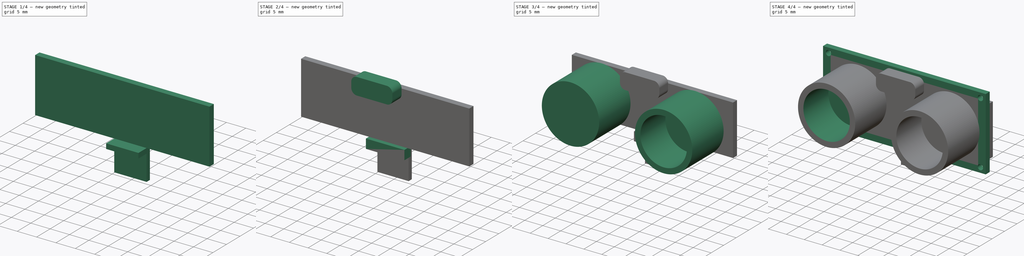
[diagram: build sequence overview — one tinted view per stage of 4, left to right]
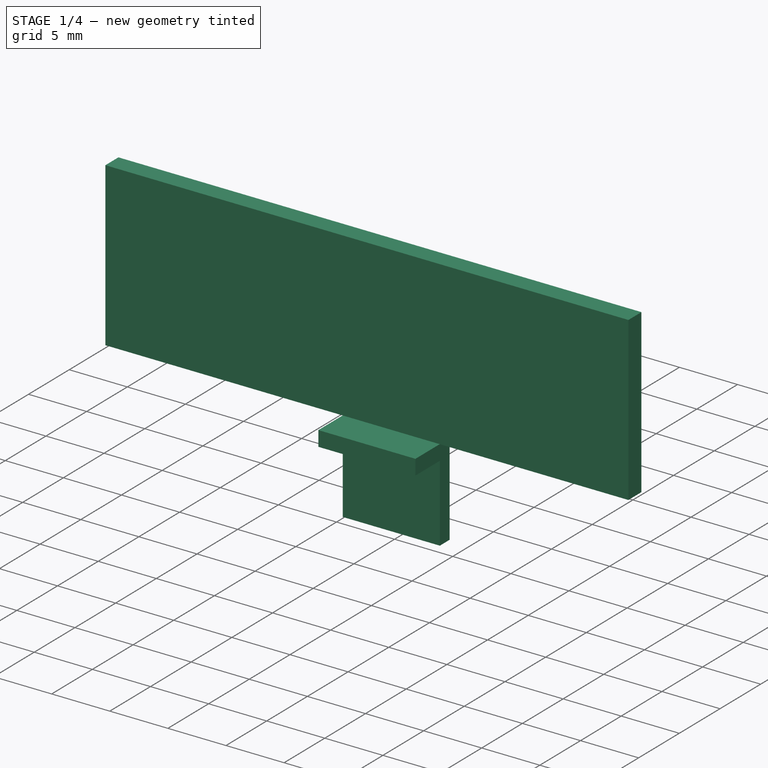
[diagram: stage 1 of 4 — iso view after this stage's code; geometry added in this stage tinted green]
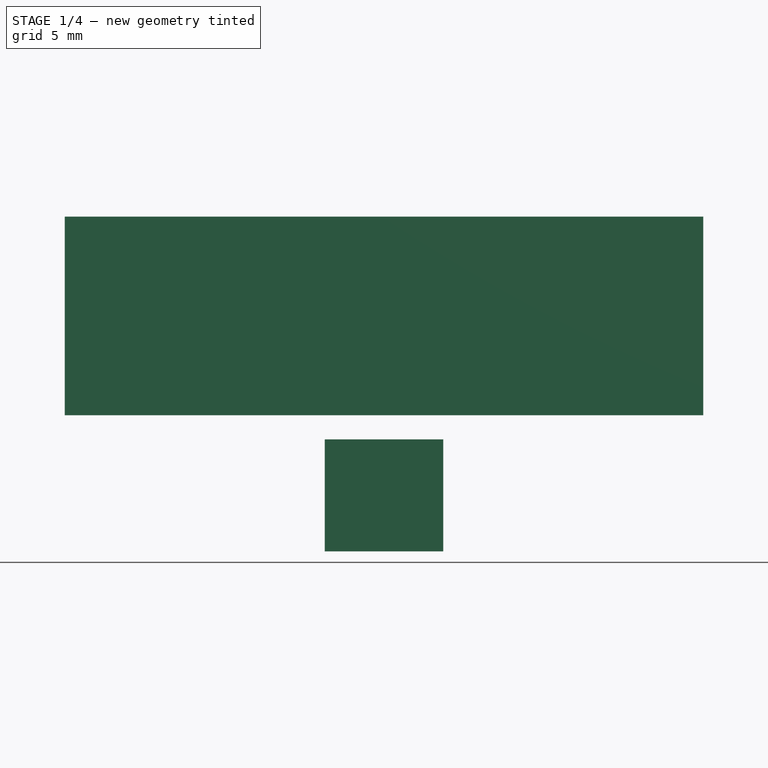
[diagram: stage 1 of 4 — front view after this stage's code; geometry added in this stage tinted green]
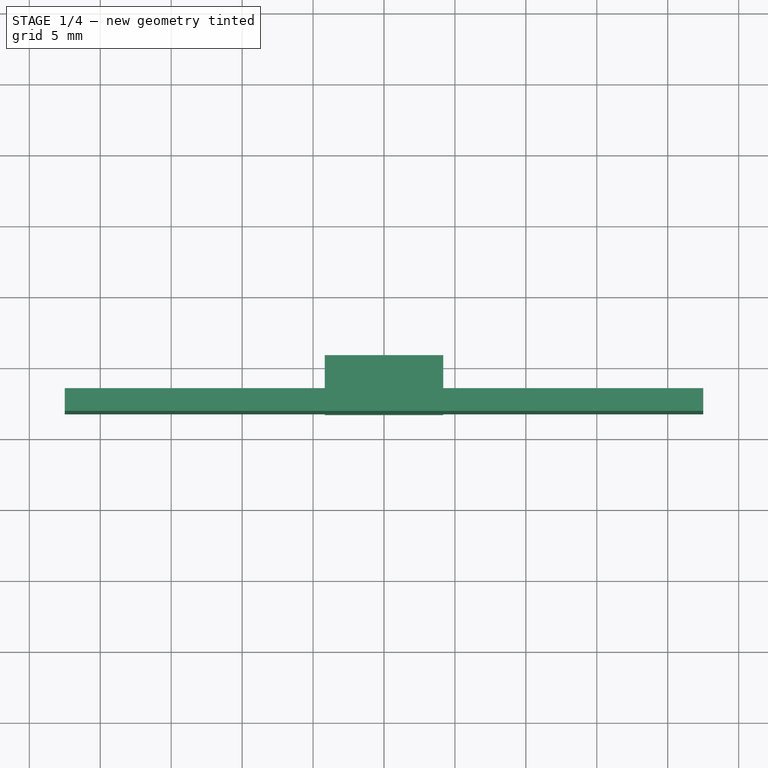
[diagram: stage 1 of 4 — top view after this stage's code; geometry added in this stage tinted green]
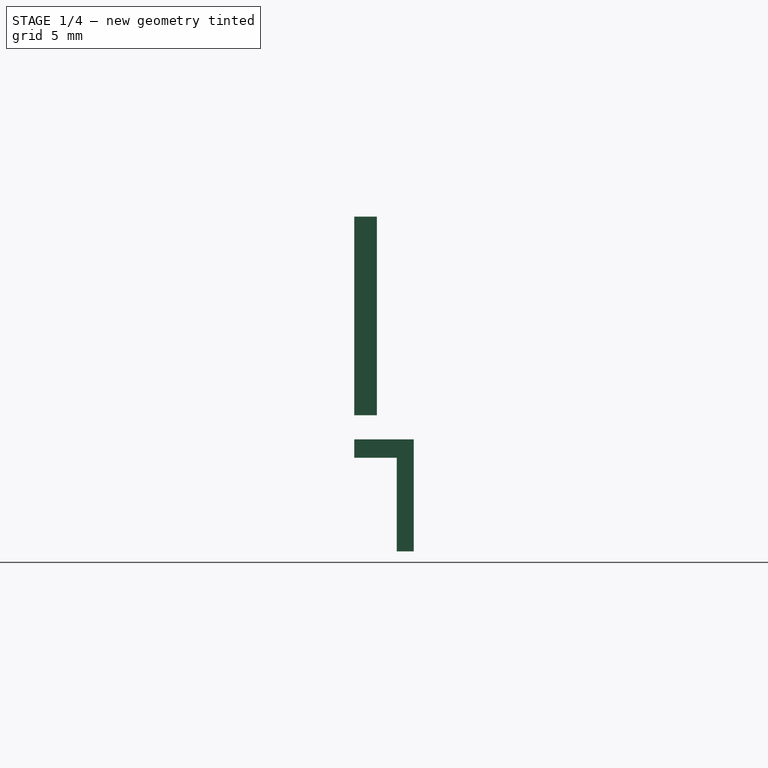
[diagram: stage 1 of 4 — right view after this stage's code; geometry added in this stage tinted green]
FCSTD DOCUMENT  (FreeCAD 0.19R24276 (Git))
Label: Std_USDistSensor
License: All rights reserved
LicenseURL: http://en.wikipedia.org/wiki/All_rights_reserved
objects: Sketcher::SketchObject×11, PartDesign::Pad×7, PartDesign::Body×7, PartDesign::Pocket×4, PartDesign::Plane×2, PartDesign::Fillet×1, PartDesign::ShapeBinder×1, App::Part×1
note: 45 computed .brp shape members not serialized (recipe doc carries the construction recipe); baked Part::Feature solids carry a one-line shape summary decoded from their .brp

FEATURE [PartDesign::Body] Body004  label="PinBlock"
  Group = -> [DatumPlane,Sketch007,Pad004]
  Origin = -> Origin005
  Tip = -> Pad004
FEATURE [PartDesign::Plane] DatumPlane001
  AttachmentOffset = pos=(0,0,-1.6) rot=(0,0,1;0rad)
  Length = 60
  MapMode = 5
  Placement = pos=(0,1.6,4e-16) rot=(1,0,0;1.5708rad)
  ResizeMode = 0
  Support = -> [XZ_Plane006]
  Width = 60
FEATURE [Sketcher::SketchObject] Sketch008
  FullyConstrained = true
  MapMode = 5
  Placement = pos=(0,1.6,4e-16) rot=(1,0,0;1.5708rad)
  Support = -> [DatumPlane001]
  sketch-geometry (5):
    g0: LineSegment StartX=-4.175 StartY=-8.7 StartZ=0 EndX=4.175 EndY=-8.7 EndZ=0
    g1: LineSegment StartX=4.175 StartY=-8.7 StartZ=0 EndX=4.175 EndY=-16.6 EndZ=0
    g2: LineSegment StartX=4.175 StartY=-16.6 StartZ=0 EndX=-4.175 EndY=-16.6 EndZ=0
    g3: LineSegment StartX=-4.175 StartY=-16.6 StartZ=0 EndX=-4.175 EndY=-8.7 EndZ=0
    g4: LineSegment StartX=0 StartY=0 StartZ=0 EndX=0 EndY=-8.7 EndZ=0
  constraints (14):
    c: Coincident(g0,g1)
    c: Coincident(g1,g2)
    c: Coincident(g2,g3)
    c: Coincident(g3,g0)
    c: Horizontal(g0)
    c: Horizontal(g2)
    c: Vertical(g1)
    c: Vertical(g3)
    c: Coincident(g4,g-1)
    c: PointOnObject(g4,g-2)
    c: Symmetric(g0,g0,g4)
    c: Distance(g1) = 7.9
    c: Distance(g2) = 8.35
    c: Distance(g4) = 8.7
FEATURE [PartDesign::Pad] Pad005
  Direction = (1,1,1)
  Length = 4.2
  Length2 = 100
  Placement = pos=(0,1.6,0) rot=(1,0,0;1.5708rad)
  Profile = -> Sketch008
  Reversed = true
  Type = 0
FEATURE [Sketcher::SketchObject] Sketch009
  FullyConstrained = true
  MapMode = 5
  Placement = pos=(-4.175,1.6,0) rot=(0.707107,0,-0.707107;3.14159rad)
  Support = -> [Pad005]
  sketch-geometry (4):
    g0: LineSegment StartX=10 StartY=-3 StartZ=0 EndX=30 EndY=-3 EndZ=0
    g1: LineSegment StartX=30 StartY=-3 StartZ=0 EndX=30 EndY=0 EndZ=0
    g2: LineSegment StartX=30 StartY=0 StartZ=0 EndX=10 EndY=0 EndZ=0
    g3: LineSegment StartX=10 StartY=0 StartZ=0 EndX=10 EndY=-3 EndZ=0
  constraints (12):
    c: Coincident(g0,g1)
    c: Coincident(g1,g2)
    c: Coincident(g2,g3)
    c: Coincident(g3,g0)
    c: Horizontal(g0)
    c: Horizontal(g2)
    c: Vertical(g1)
    c: Vertical(g3)
    c: DistanceX(g-1,g2) = 10
    c: PointOnObject(g1,g-1)
    c: Distance(g2) = 20
    c: Distance(g1) = 3
FEATURE [PartDesign::Pocket] Pocket003
  BaseFeature = -> Pad005
  Length = 5
  Length2 = 100
  Placement = pos=(0,1.6,0) rot=(1,0,0;1.5708rad)
  Profile = -> Sketch009
  Type = 1
FEATURE [PartDesign::Body] Body005  label="Pins"
  Group = -> [DatumPlane001,Sketch008,Pad005,Sketch009,Pocket003]
  Origin = -> Origin006
  Tip = -> Pocket003
FEATURE [PartDesign::ShapeBinder] CopyPocket
  Placement = pos=(0,0,0) rot=(1,0,0;1.5708rad)
  TraceSupport = false
FEATURE [Sketcher::SketchObject] Sketch010
  FullyConstrained = true
  MapMode = 5
  Placement = pos=(0,1.6,-7e-16) rot=(-1,0,0;1.5708rad)
  Support = -> [CopyPocket]
  sketch-geometry (6):
    g0: LineSegment StartX=-22.5 StartY=7 StartZ=0 EndX=22.5 EndY=7 EndZ=0
    g1: LineSegment StartX=22.5 StartY=7 StartZ=0 EndX=22.5 EndY=-7 EndZ=0
    g2: LineSegment StartX=22.5 StartY=-7 StartZ=0 EndX=-22.5 EndY=-7 EndZ=0
    g3: LineSegment StartX=-22.5 StartY=-7 StartZ=0 EndX=-22.5 EndY=7 EndZ=0
    g4: LineSegment StartX=0 StartY=0 StartZ=0 EndX=0 EndY=7 EndZ=0
    g5: LineSegment StartX=0 StartY=-1e-16 StartZ=0 EndX=22.5 EndY=-1e-16 EndZ=0
  constraints (16):
    c: Coincident(g0,g1)
    c: Coincident(g1,g2)
    c: Coincident(g2,g3)
    c: Coincident(g3,g0)
    c: Horizontal(g0)
    c: Horizontal(g2)
    c: Vertical(g1)
    c: Vertical(g3)
    c: Coincident(g4,g-1)
    c: Vertical(g4)
    c: Coincident(g5,g-1)
    c: Horizontal(g5)
    c: Symmetric(g0,g0,g4)
    c: Symmetric(g0,g1,g5)
    c: Distance(g0) = 45
    c: Distance(g1) = 14
FEATURE [PartDesign::Pad] Pad006
  Direction = (1,1,1)
  Length = 1.6
  Length2 = 100
  Placement = pos=(0,0,0) rot=(1,0,0;1.5708rad)
  Profile = -> Sketch010
  Type = 0
FEATURE [PartDesign::Body] Body006  label="BackSolderChips"
  Group = -> [CopyPocket,Sketch010,Pad006]
  Origin = -> Origin007
  Tip = -> Pad006
FEATURE [App::Part] Part  label="UltrasonicSensor"
  Group = -> [Body,Body001,Body002,Body003,Body004,Body005,Body006]
  Origin = -> Origin
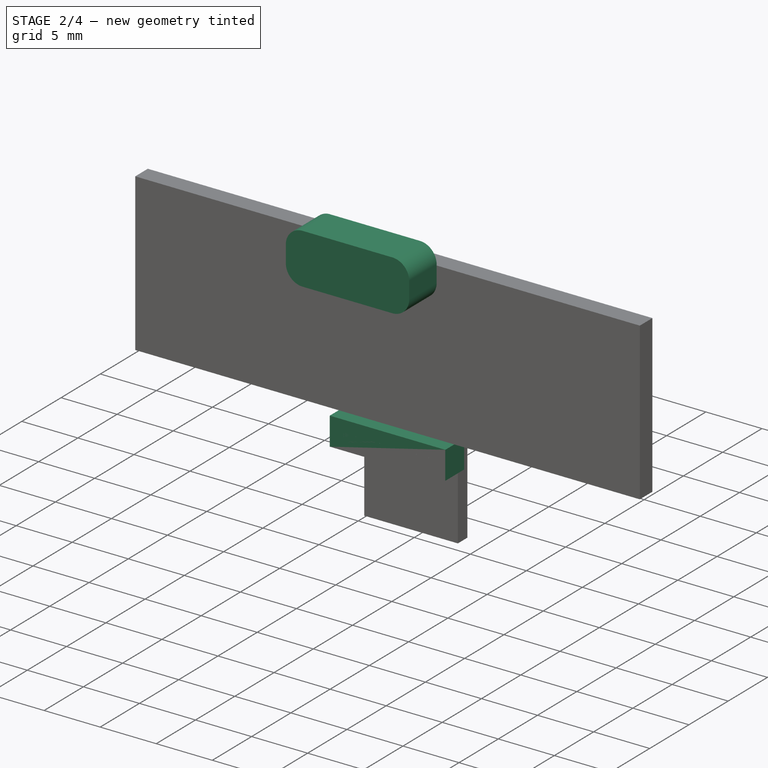
[diagram: stage 2 of 4 — iso view after this stage's code; geometry added in this stage tinted green]
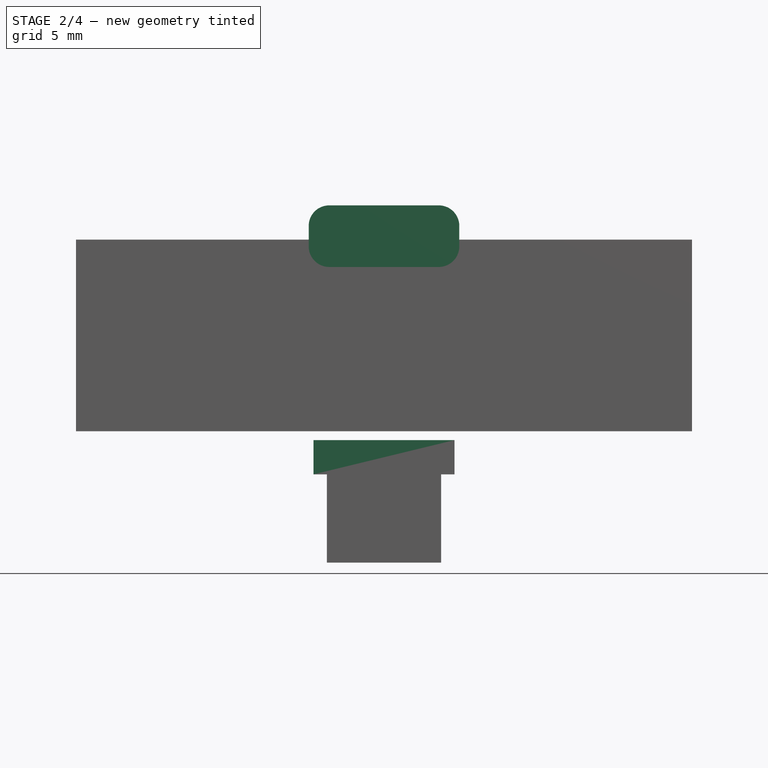
[diagram: stage 2 of 4 — front view after this stage's code; geometry added in this stage tinted green]
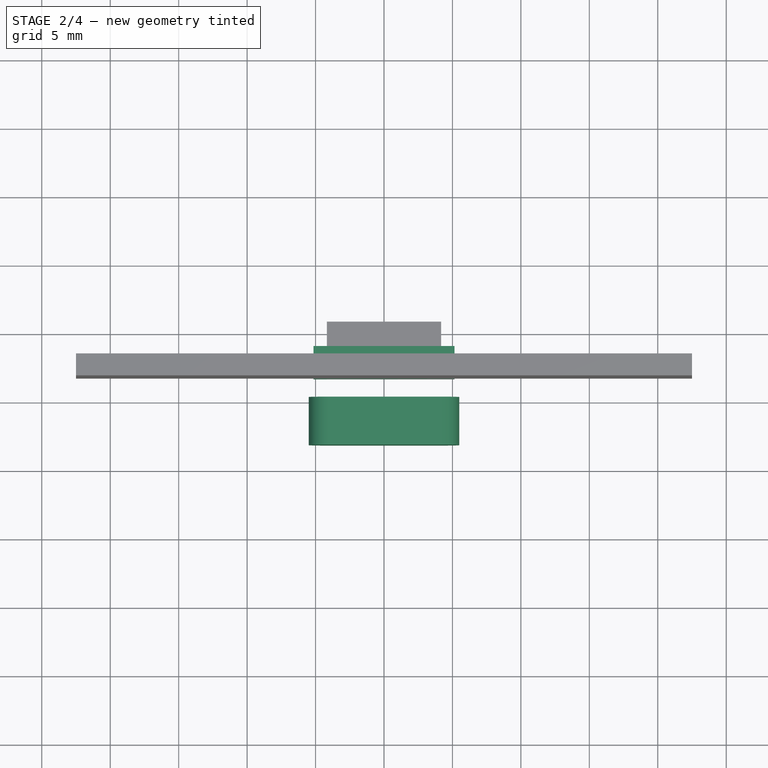
[diagram: stage 2 of 4 — top view after this stage's code; geometry added in this stage tinted green]
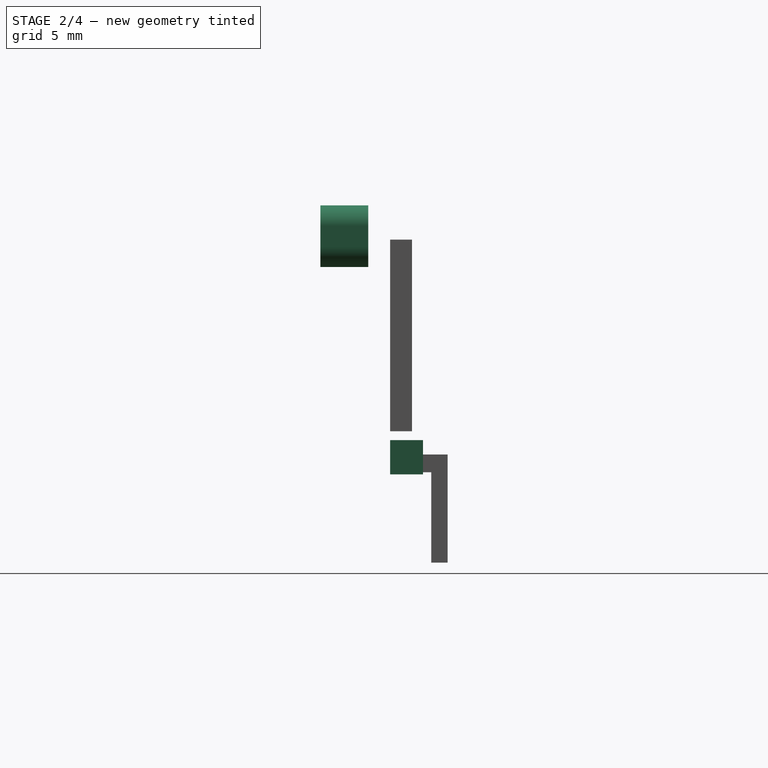
[diagram: stage 2 of 4 — right view after this stage's code; geometry added in this stage tinted green]
FEATURE [PartDesign::Body] Body002  label="USSens2"
  Group = -> [Sketch004,Pad002,Sketch005,Pocket002]
  Origin = -> Origin003
  Tip = -> Pocket002
FEATURE [Sketcher::SketchObject] Sketch006
  FullyConstrained = true
  MapMode = 5
  Placement = pos=(0,0,0) rot=(1,0,0;1.5708rad)
  Support = -> [XZ_Plane004]
  sketch-geometry (5):
    g0: LineSegment StartX=-5.5 StartY=9.5 StartZ=0 EndX=5.5 EndY=9.5 EndZ=0
    g1: LineSegment StartX=5.5 StartY=9.5 StartZ=0 EndX=5.5 EndY=5 EndZ=0
    g2: LineSegment StartX=5.5 StartY=5 StartZ=0 EndX=-5.5 EndY=5 EndZ=0
    g3: LineSegment StartX=-5.5 StartY=5 StartZ=0 EndX=-5.5 EndY=9.5 EndZ=0
    g4: LineSegment StartX=0 StartY=0 StartZ=0 EndX=0 EndY=5 EndZ=0
  constraints (14):
    c: Coincident(g0,g1)
    c: Coincident(g1,g2)
    c: Coincident(g2,g3)
    c: Coincident(g3,g0)
    c: Horizontal(g0)
    c: Horizontal(g2)
    c: Vertical(g1)
    c: Vertical(g3)
    c: Coincident(g4,g-1)
    c: Vertical(g4)
    c: Symmetric(g2,g1,g4)
    c: Distance(g4) = 5
    c: Distance(g0) = 11
    c: Distance(g1) = 4.5
FEATURE [PartDesign::Pad] Pad003
  Direction = (1,1,1)
  Length = 3.5
  Length2 = 100
  Placement = pos=(0,0,0) rot=(1,0,0;1.5708rad)
  Profile = -> Sketch006
  Type = 0
FEATURE [PartDesign::Fillet] Fillet
  Base = -> Pad003 [Edge1,Edge2,Edge5,Edge8]
  BaseFeature = -> Pad003
  Placement = pos=(0,0,0) rot=(1,0,0;1.5708rad)
  Radius = 1.5
  SupportTransform = false
FEATURE [PartDesign::Body] Body003  label="SBlock"
  Group = -> [Sketch006,Pad003,Fillet]
  Origin = -> Origin004
  Tip = -> Fillet
FEATURE [PartDesign::Plane] DatumPlane
  AttachmentOffset = pos=(0,0,-1.6) rot=(0,0,1;0rad)
  Length = 60
  MapMode = 5
  Placement = pos=(0,1.6,4e-16) rot=(1,0,0;1.5708rad)
  ResizeMode = 0
  Support = -> [XZ_Plane005]
  Width = 60
FEATURE [Sketcher::SketchObject] Sketch007
  FullyConstrained = true
  MapMode = 5
  Placement = pos=(0,1.6,4e-16) rot=(1,0,0;1.5708rad)
  Support = -> [DatumPlane]
  sketch-geometry (5):
    g0: LineSegment StartX=0 StartY=0 StartZ=0 EndX=0 EndY=-7.65 EndZ=0
    g1: LineSegment StartX=-5.15 StartY=-7.65 StartZ=0 EndX=5.15 EndY=-7.65 EndZ=0
    g2: LineSegment StartX=5.15 StartY=-7.65 StartZ=0 EndX=5.15 EndY=-10.15 EndZ=0
    g3: LineSegment StartX=5.15 StartY=-10.15 StartZ=0 EndX=-5.15 EndY=-10.15 EndZ=0
    g4: LineSegment StartX=-5.15 StartY=-10.15 StartZ=0 EndX=-5.15 EndY=-7.65 EndZ=0
  constraints (14):
    c: Coincident(g0,g-1)
    c: Vertical(g0)
    c: Coincident(g1,g2)
    c: Coincident(g2,g3)
    c: Coincident(g3,g4)
    c: Coincident(g4,g1)
    c: Horizontal(g1)
    c: Horizontal(g3)
    c: Vertical(g2)
    c: Vertical(g4)
    c: Symmetric(g1,g1,g0)
    c: Distance(g3) = 10.3
    c: Distance(g2) = 2.5
    c: DistanceY(g2,g-1) = 10.15
FEATURE [PartDesign::Pad] Pad004
  Direction = (1,1,1)
  Length = 2.4
  Length2 = 100
  Placement = pos=(0,1.6,0) rot=(1,0,0;1.5708rad)
  Profile = -> Sketch007
  Reversed = true
  Type = 0
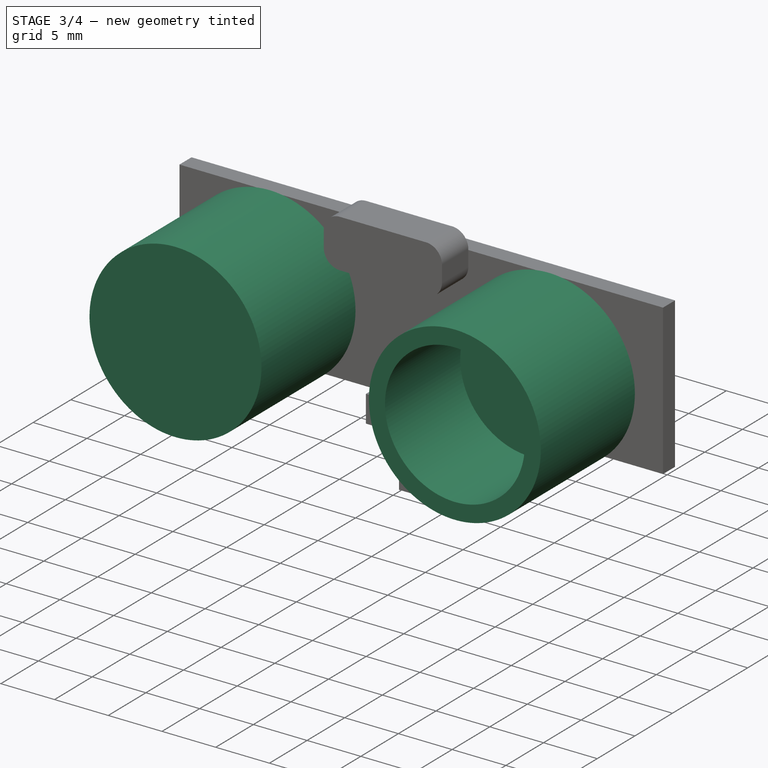
[diagram: stage 3 of 4 — iso view after this stage's code; geometry added in this stage tinted green]
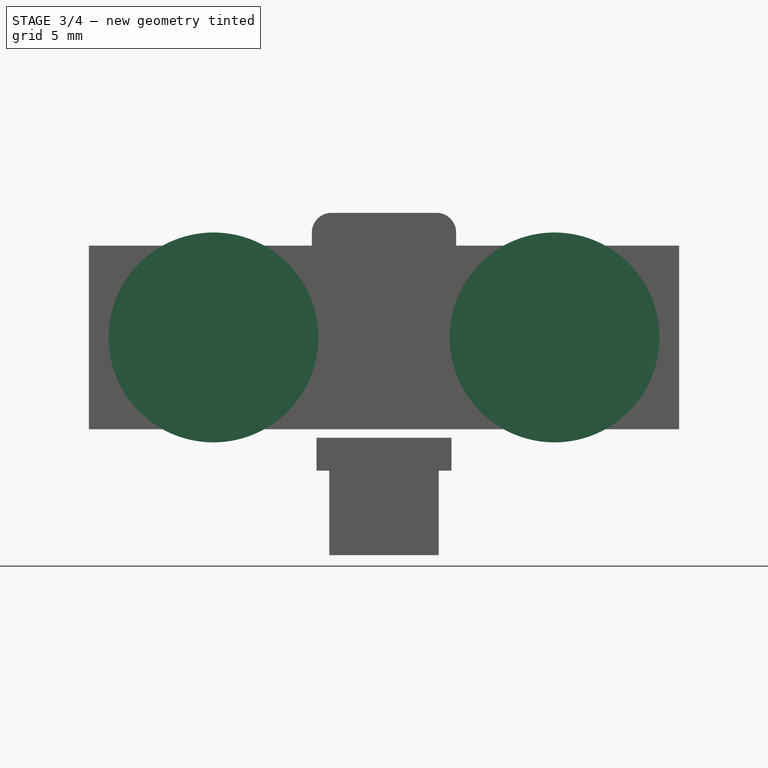
[diagram: stage 3 of 4 — front view after this stage's code; geometry added in this stage tinted green]
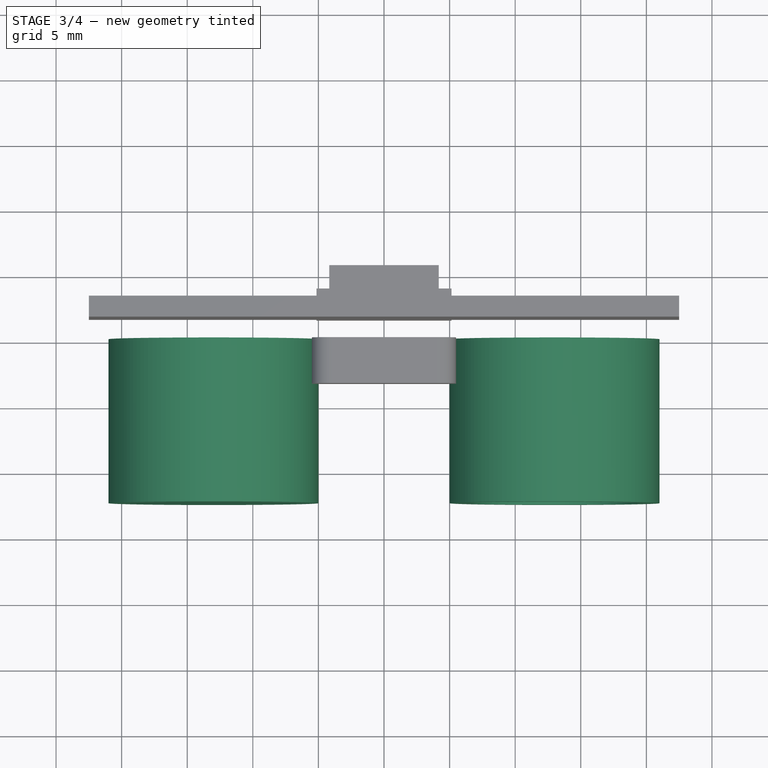
[diagram: stage 3 of 4 — top view after this stage's code; geometry added in this stage tinted green]
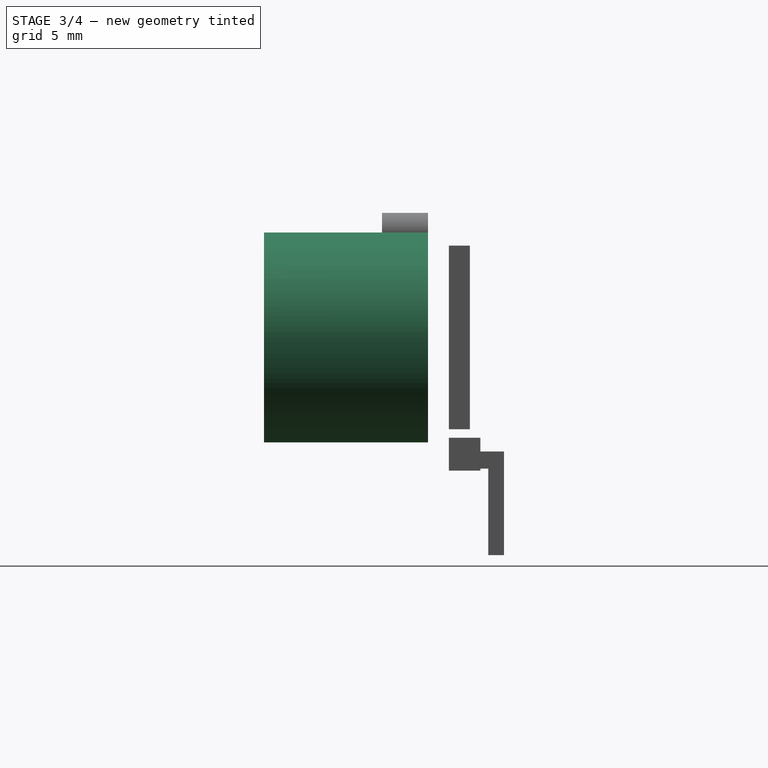
[diagram: stage 3 of 4 — right view after this stage's code; geometry added in this stage tinted green]
FEATURE [PartDesign::Body] Body  label="MainBoard"
  Group = -> [Sketch,Pad,Sketch001,Pocket]
  Origin = -> Origin001
  Tip = -> Pocket
FEATURE [Sketcher::SketchObject] Sketch002
  FullyConstrained = true
  MapMode = 5
  Placement = pos=(0,0,0) rot=(1,0,0;1.5708rad)
  Support = -> [XZ_Plane]
  sketch-geometry (1):
    g0: Circle CenterX=-13 CenterY=0 CenterZ=0 NormalX=0 NormalY=0 NormalZ=1 AngleXU=0 Radius=8
  constraints (3):
    c: PointOnObject(g0,g-1)
    c: Diameter(g0) = 16
    c: DistanceX(g0,g-1) = 13
FEATURE [PartDesign::Pad] Pad001
  Direction = (1,1,1)
  Length = 12.5
  Length2 = 100
  Placement = pos=(0,0,0) rot=(1,0,0;1.5708rad)
  Profile = -> Sketch002
  Type = 0
FEATURE [PartDesign::Body] Body001  label="USSens1"
  Group = -> [Sketch002,Pad001,Sketch003,Pocket001]
  Origin = -> Origin002
  Tip = -> Pocket001
FEATURE [Sketcher::SketchObject] Sketch004
  FullyConstrained = true
  MapMode = 5
  Placement = pos=(0,0,0) rot=(1,0,0;1.5708rad)
  Support = -> [XZ_Plane003]
  sketch-geometry (1):
    g0: Circle CenterX=13 CenterY=0 CenterZ=0 NormalX=0 NormalY=0 NormalZ=1 AngleXU=0 Radius=8
  constraints (3):
    c: PointOnObject(g0,g-1)
    c: Diameter(g0) = 16
    c: DistanceX(g-1,g0) = 13
FEATURE [PartDesign::Pad] Pad002
  Direction = (1,1,1)
  Length = 12.5
  Length2 = 100
  Placement = pos=(0,0,0) rot=(1,0,0;1.5708rad)
  Profile = -> Sketch004
  Type = 0
FEATURE [Sketcher::SketchObject] Sketch005
  FullyConstrained = true
  MapMode = 5
  Placement = pos=(0,-12.5,5.5e-15) rot=(1,0,0;1.5708rad)
  Support = -> [Pad002]
  sketch-geometry (1):
    g0: Circle CenterX=13 CenterY=0 CenterZ=0 NormalX=0 NormalY=0 NormalZ=1 AngleXU=0 Radius=6.5
  constraints (3):
    c: PointOnObject(g0,g-1)
    c: Diameter(g0) = 13
    c: DistanceX(g-1,g0) = 13
FEATURE [PartDesign::Pocket] Pocket002
  BaseFeature = -> Pad002
  Length = 10
  Length2 = 100
  Placement = pos=(0,0,0) rot=(1,0,0;1.5708rad)
  Profile = -> Sketch005
  Type = 0
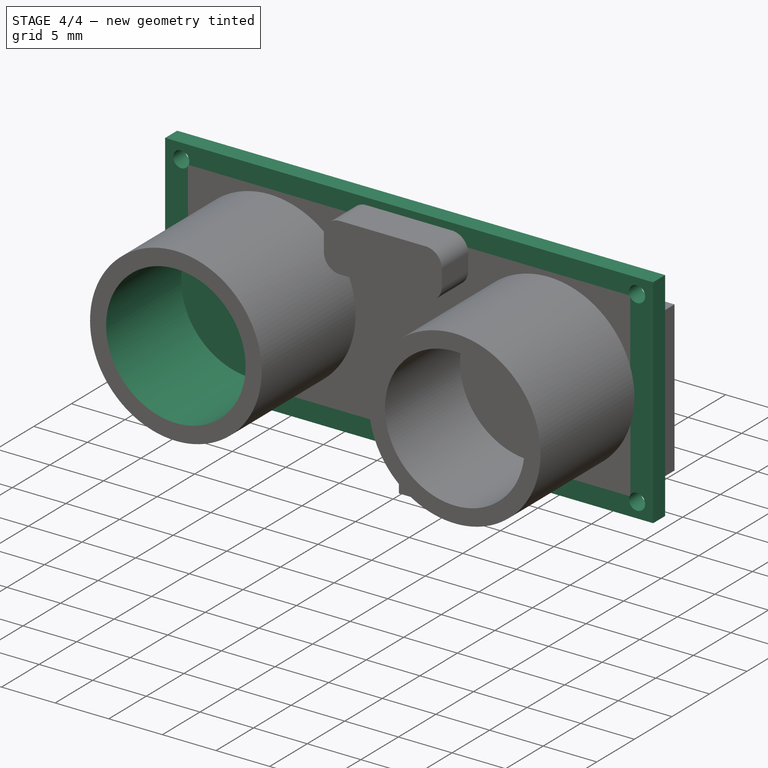
[diagram: stage 4 of 4 — iso view after this stage's code; geometry added in this stage tinted green]
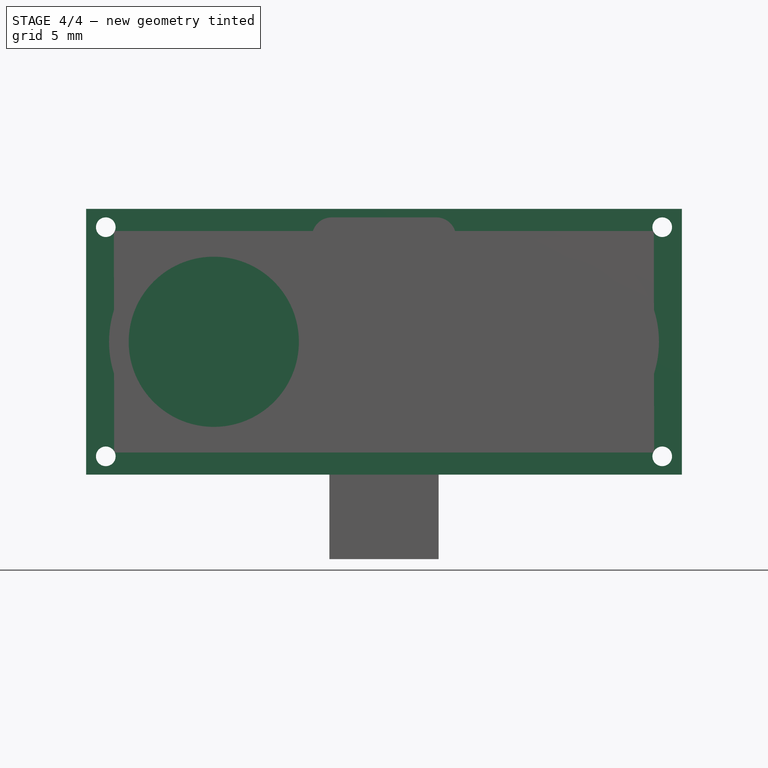
[diagram: stage 4 of 4 — front view after this stage's code; geometry added in this stage tinted green]
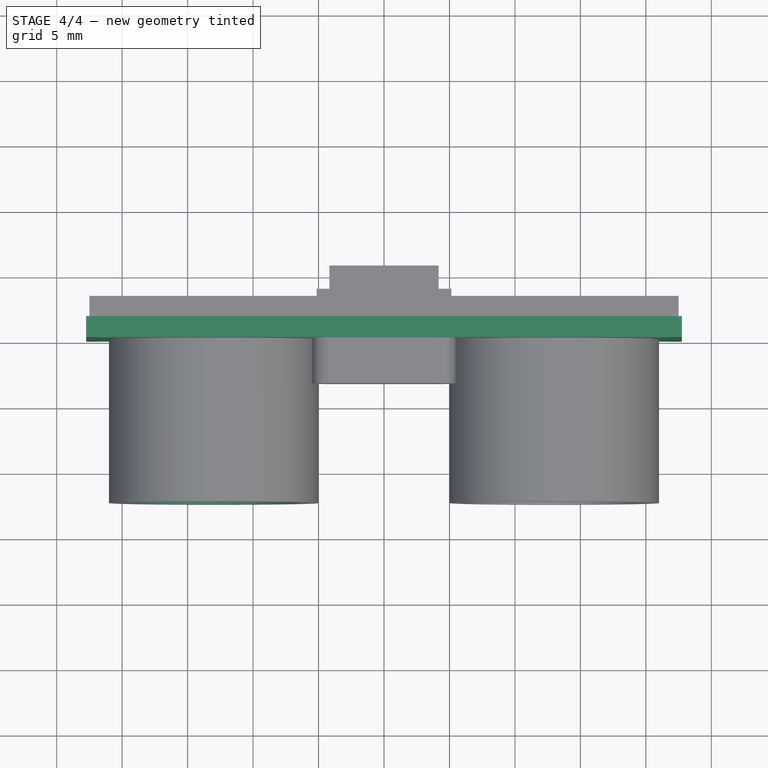
[diagram: stage 4 of 4 — top view after this stage's code; geometry added in this stage tinted green]
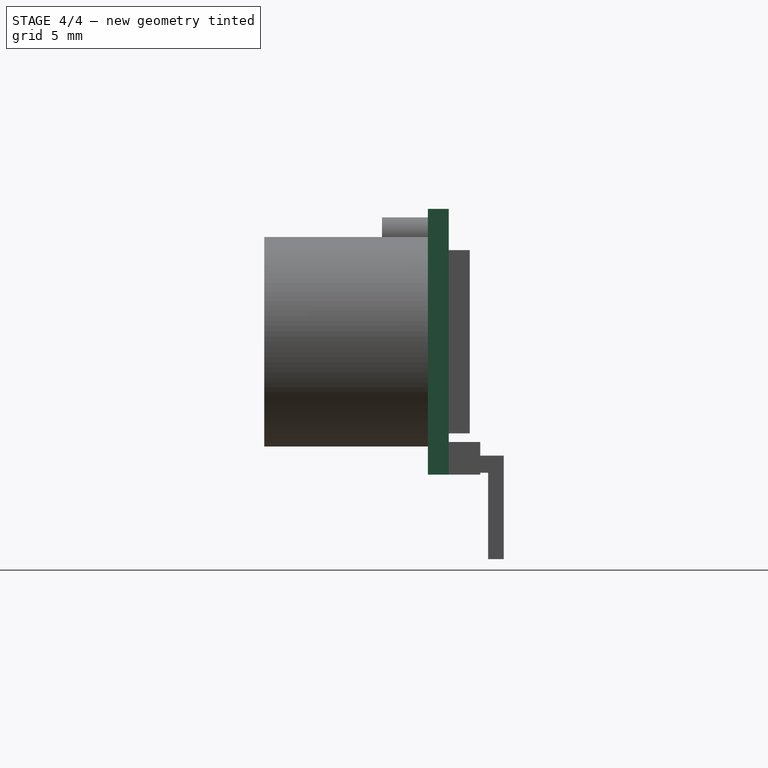
[diagram: stage 4 of 4 — right view after this stage's code; geometry added in this stage tinted green]
FEATURE [Sketcher::SketchObject] Sketch
  FullyConstrained = true
  MapMode = 5
  Placement = pos=(0,0,0) rot=(1,0,0;1.5708rad)
  Support = -> [XZ_Plane001]
  sketch-geometry (6):
    g0: LineSegment StartX=0 StartY=0 StartZ=0 EndX=0 EndY=10.15 EndZ=0
    g1: LineSegment StartX=0 StartY=0 StartZ=0 EndX=22.75 EndY=0 EndZ=0
    g2: LineSegment StartX=-22.75 StartY=10.15 StartZ=0 EndX=22.75 EndY=10.15 EndZ=0
    g3: LineSegment StartX=22.75 StartY=10.15 StartZ=0 EndX=22.75 EndY=-10.15 EndZ=0
    g4: LineSegment StartX=22.75 StartY=-10.15 StartZ=0 EndX=-22.75 EndY=-10.15 EndZ=0
    g5: LineSegment StartX=-22.75 StartY=-10.15 StartZ=0 EndX=-22.75 EndY=10.15 EndZ=0
  constraints (16):
    c: Coincident(g0,g-1)
    c: PointOnObject(g0,g-2)
    c: Coincident(g1,g-1)
    c: Horizontal(g1)
    c: Coincident(g2,g3)
    c: Coincident(g3,g4)
    c: Coincident(g4,g5)
    c: Coincident(g5,g2)
    c: Horizontal(g2)
    c: Horizontal(g4)
    c: Vertical(g3)
    c: Vertical(g5)
    c: Symmetric(g2,g2,g0)
    c: Symmetric(g2,g3,g1)
    c: Distance(g2) = 45.5
    c: Distance(g3) = 20.3
FEATURE [PartDesign::Pad] Pad  label="BoardExt"
  Direction = (1,1,1)
  Length = 1.6
  Length2 = 100
  Placement = pos=(0,0,0) rot=(1,0,0;1.5708rad)
  Profile = -> Sketch
  Reversed = true
  Type = 0
FEATURE [Sketcher::SketchObject] Sketch001
  FullyConstrained = true
  MapMode = 5
  Placement = pos=(0,0,0) rot=(1,0,0;1.5708rad)
  Support = -> [XZ_Plane001]
  sketch-geometry (10):
    g0: LineSegment StartX=-21.25 StartY=8.75 StartZ=0 EndX=21.25 EndY=8.75 EndZ=0
    g1: LineSegment StartX=21.25 StartY=8.75 StartZ=0 EndX=21.25 EndY=-8.75 EndZ=0
    g2: LineSegment StartX=21.25 StartY=-8.75 StartZ=0 EndX=-21.25 EndY=-8.75 EndZ=0
    g3: LineSegment StartX=-21.25 StartY=-8.75 StartZ=0 EndX=-21.25 EndY=8.75 EndZ=0
    g4: LineSegment StartX=0 StartY=0 StartZ=0 EndX=0 EndY=8.75 EndZ=0
    g5: LineSegment StartX=0 StartY=6e-16 StartZ=0 EndX=21.25 EndY=6e-16 EndZ=0
    g6: Circle CenterX=-21.25 CenterY=8.75 CenterZ=0 NormalX=0 NormalY=0 NormalZ=1 AngleXU=0 Radius=0.75
    g7: Circle CenterX=21.25 CenterY=8.75 CenterZ=0 NormalX=0 NormalY=0 NormalZ=1 AngleXU=0 Radius=0.75
    g8: Circle CenterX=21.25 CenterY=-8.75 CenterZ=0 NormalX=0 NormalY=0 NormalZ=1 AngleXU=0 Radius=0.75
    g9: Circle CenterX=-21.25 CenterY=-8.75 CenterZ=0 NormalX=0 NormalY=0 NormalZ=1 AngleXU=0 Radius=0.75
  constraints (24):
    c: Coincident(g0,g1)
    c: Coincident(g1,g2)
    c: Coincident(g2,g3)
    c: Coincident(g3,g0)
    c: Horizontal(g0)
    c: Horizontal(g2)
    c: Vertical(g1)
    c: Vertical(g3)
    c: Coincident(g4,g-1)
    c: PointOnObject(g4,g-2)
    c: Coincident(g5,g-1)
    c: Horizontal(g5)
    c: Symmetric(g0,g0,g4)
    c: Symmetric(g0,g1,g5)
    c: Coincident(g6,g0)
    c: Coincident(g7,g0)
    c: Coincident(g8,g1)
    c: Coincident(g9,g2)
    c: Equal(g6,g7)
    c: Equal(g8,g9)
    c: Equal(g8,g7)
    c: Diameter(g6) = 1.5
    c: Distance(g0) = 42.5
    c: Distance(g1) = 17.5
FEATURE [PartDesign::Pocket] Pocket  label="MountHole"
  BaseFeature = -> Pad
  Length = 5
  Length2 = 100
  Placement = pos=(0,0,0) rot=(1,0,0;1.5708rad)
  Profile = -> Sketch001
  Type = 0
FEATURE [Sketcher::SketchObject] Sketch003
  FullyConstrained = true
  MapMode = 5
  Placement = pos=(0,-12.5,5.5e-15) rot=(1,0,0;1.5708rad)
  Support = -> [Pad001]
  sketch-geometry (1):
    g0: Circle CenterX=-13 CenterY=0 CenterZ=0 NormalX=0 NormalY=0 NormalZ=1 AngleXU=0 Radius=6.5
  constraints (3):
    c: PointOnObject(g0,g-1)
    c: Diameter(g0) = 13
    c: DistanceX(g0,g-1) = 13
FEATURE [PartDesign::Pocket] Pocket001
  BaseFeature = -> Pad001
  Length = 10
  Length2 = 100
  Placement = pos=(0,0,0) rot=(1,0,0;1.5708rad)
  Profile = -> Sketch003
  Type = 0
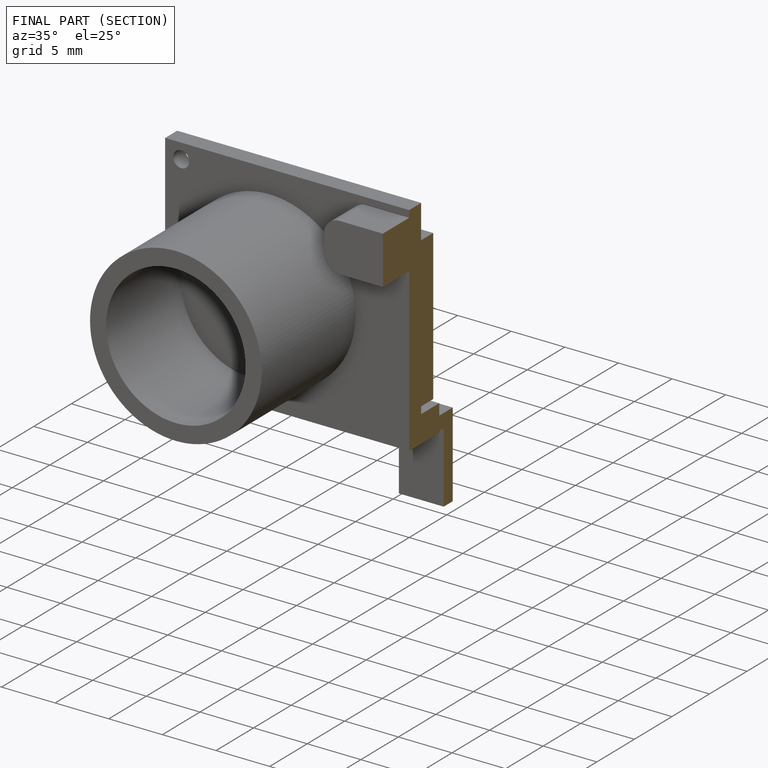
[diagram: finished part — half-section view (interior)]
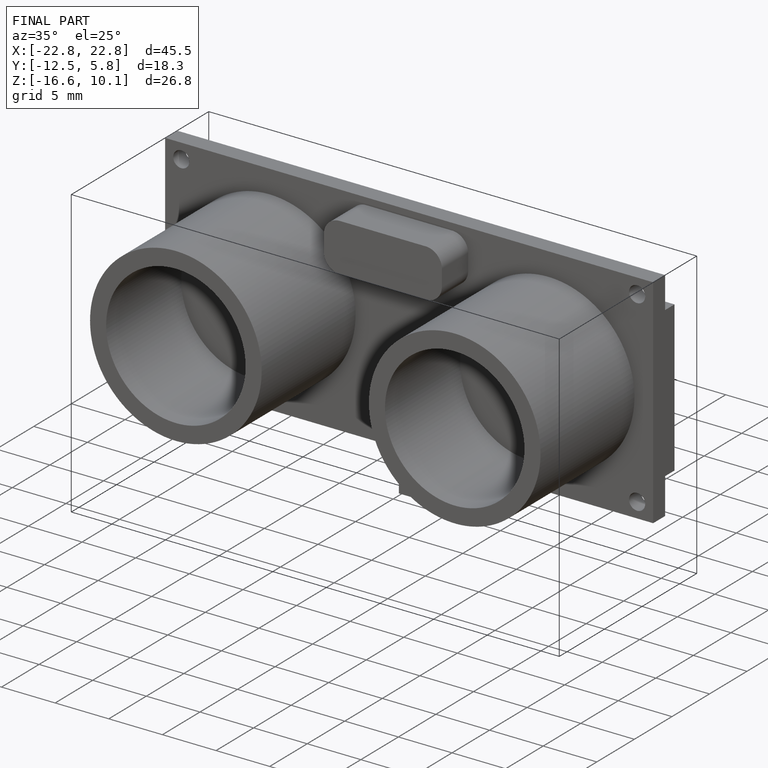
[diagram: finished part — iso view with bounding-box wireframe]
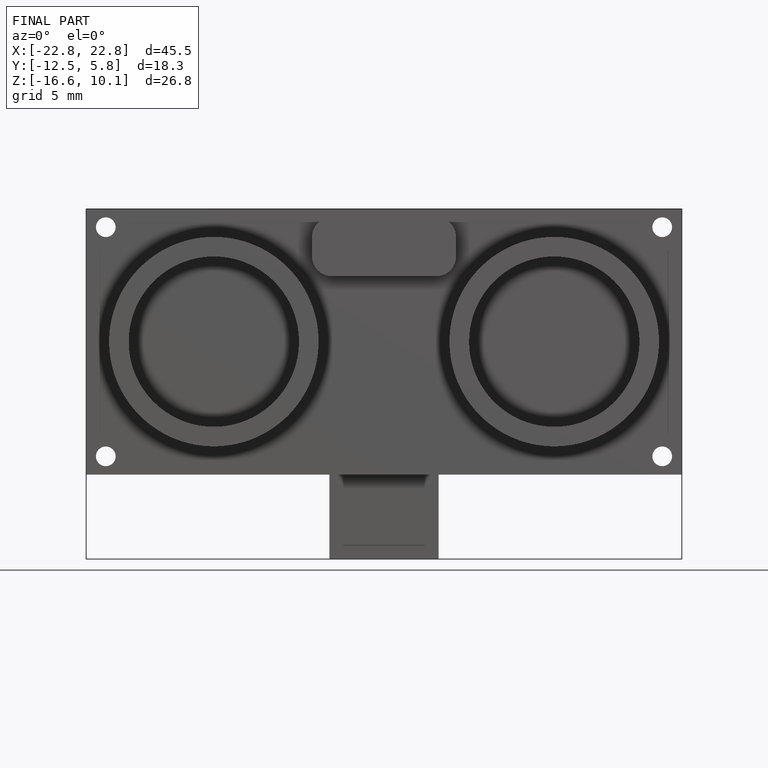
[diagram: finished part — front view with bounding-box wireframe]
